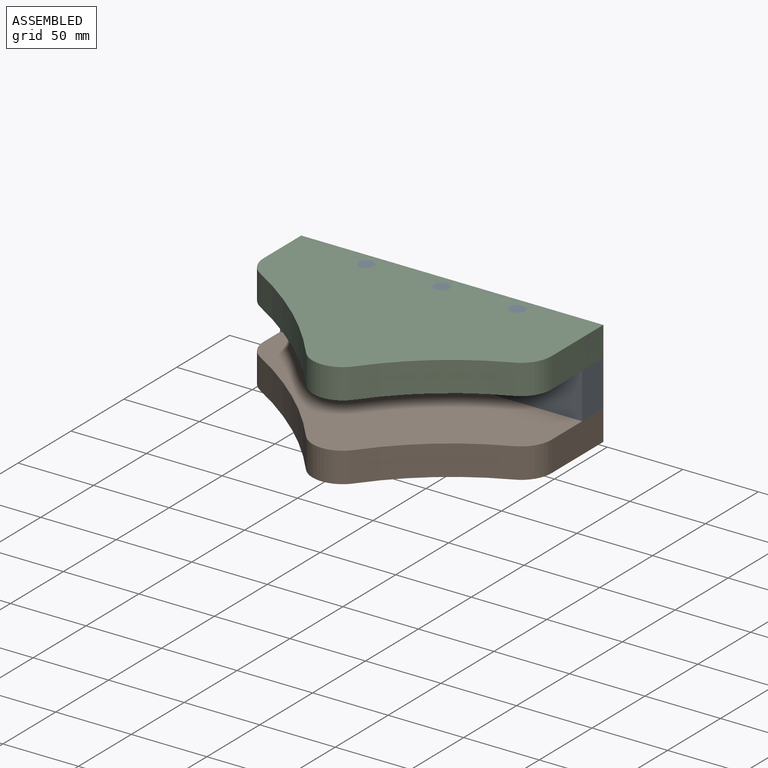
[diagram: assembled view]
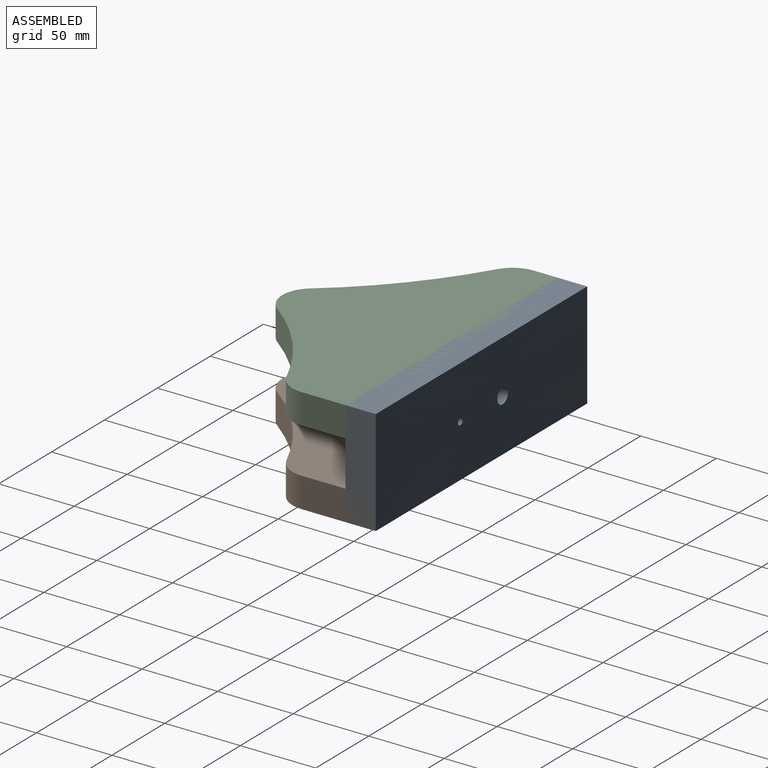
[diagram: assembled view, second angle]
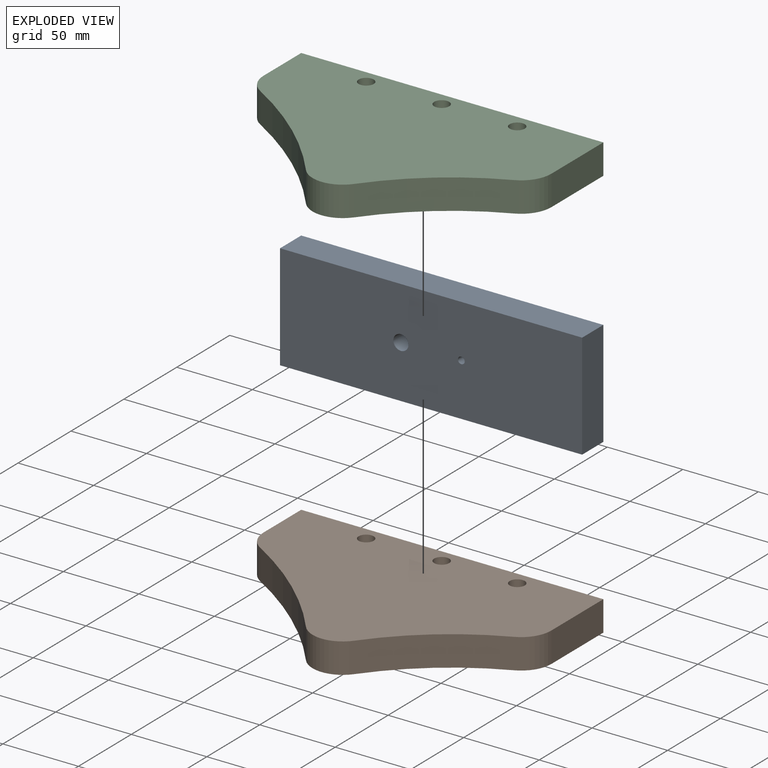
[diagram: exploded view]
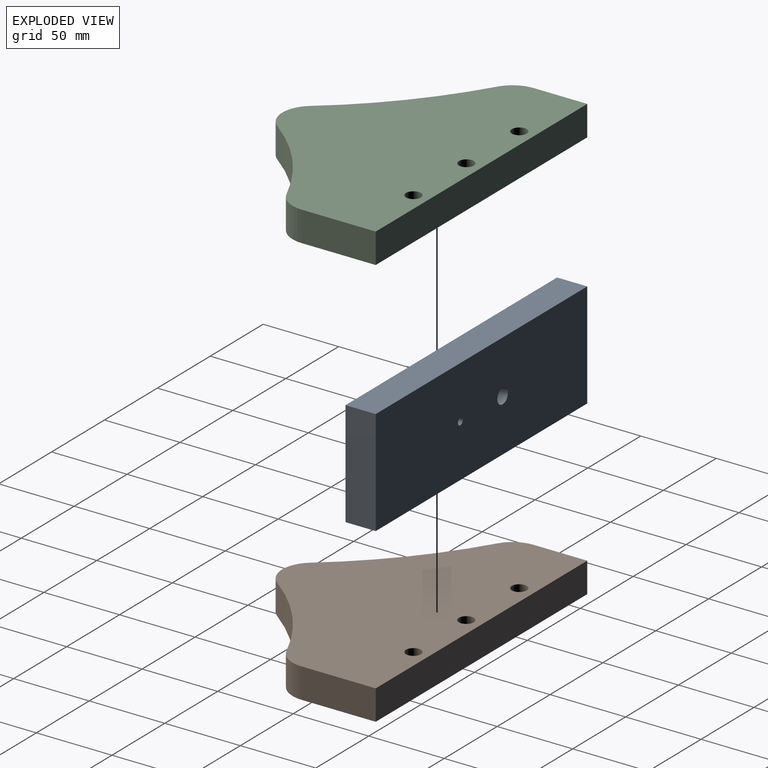
[diagram: exploded view, second angle]
ASSEMBLY  parts=3 mates=2
PART A: 8 faces, bbox 200x20x70 mm
  f0: plane 200x20mm, normal (0,0,1), area 4000mm2, adj f1,f5,f6,f7
  f1: plane 70x20mm, normal (-1,0,0), area 1400mm2, adj f0,f2,f6,f7
  f2: plane 200x20mm, normal (0,0,-1), area 4000mm2, adj f1,f5,f6,f7
  f3: cylinder r=5mm len=20mm, axis (0,1,0), area 628.3mm2, adj f6,f7
  f4: cylinder r=2.25mm len=20mm, axis (0,1,0), area 282.7mm2, adj f6,f7
  f5: plane 70x20mm, normal (1,0,0), area 1400mm2, adj f0,f2,f6,f7
  f6: plane 200x70mm, normal (0,-1,0), area 13905.6mm2, adj f0,f1,f2,f3,f4,f5
  f7: plane 200x70mm, normal (0,1,0), area 13905.6mm2, adj f0,f1,f2,f3,f4,f5
PART B: 13 faces, bbox 200x129.1x20 mm
  f0: plane 35.49x20mm, normal (-1,0,0), area 709.9mm2, adj f1,f9,f11,f12
  f1: cylinder r=20mm len=20mm, axis (0,0,-1), area 412.9mm2, adj f0,f2,f11,f12
  f2: cylinder r=289.17mm len=78.49mm, axis (0,0,-1), area 2099.9mm2, adj f1,f3,f11,f12
  f3: cylinder r=20mm len=31.69mm, axis (0,0,-1), area 731.8mm2, adj f2,f4,f11,f12
  f4: cylinder r=168.82mm len=68.02mm, axis (0,0,-1), area 1752.7mm2, adj f3,f5,f11,f12
  f5: cylinder r=20mm len=20mm, axis (0,0,-1), area 464.9mm2, adj f4,f6,f11,f12
  f6: plane 49.08x20mm, normal (1,0,0), area 981.5mm2, adj f5,f9,f11,f12
  f7: cylinder r=5mm len=20mm, axis (0,0,-1), area 628.3mm2, adj f11,f12
  f8: cylinder r=5mm len=20mm, axis (0,0,-1), area 628.3mm2, adj f11,f12
  f9: plane 200x20mm, normal (0,1,0), area 4000mm2, adj f0,f6,f11,f12
  f10: cylinder r=5mm len=20mm, axis (0,0,-1), area 628.3mm2, adj f11,f12
  f11: plane 200x129.12mm, normal (0,0,1), area 17586.5mm2, adj f0,f1,f2,f3,f4,f5,f6,f7
  f12: plane 200x129.12mm, normal (0,0,-1), area 17586.5mm2, adj f0,f1,f2,f3,f4,f5,f6,f7
PART C: same geometry as B
PLACE A t=(-200.14,-52.77,60.06)mm
PLACE B t=(-160.61,-172.87,29.73)mm
PLACE C t=(-160.61,-172.87,79.73)mm
MATE fastened C.f11 <-> A.f0  axis (0,0,1) through (-210.61,-52.77,99.73)mm
MATE fastened B.f12 <-> A.f2  axis (0,0,-1) through (-210.61,-52.77,29.73)mm
